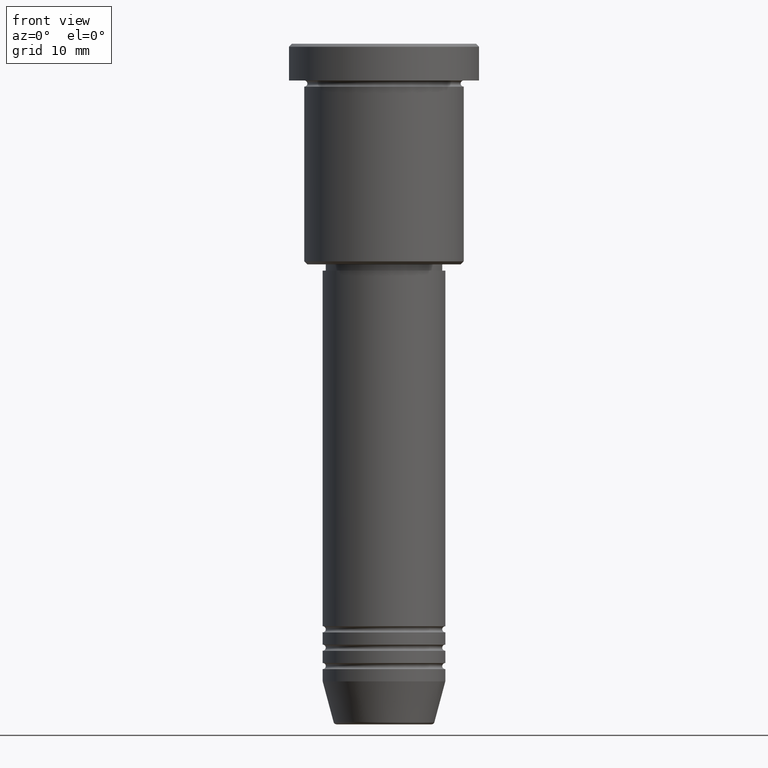
[diagram: clean part render]
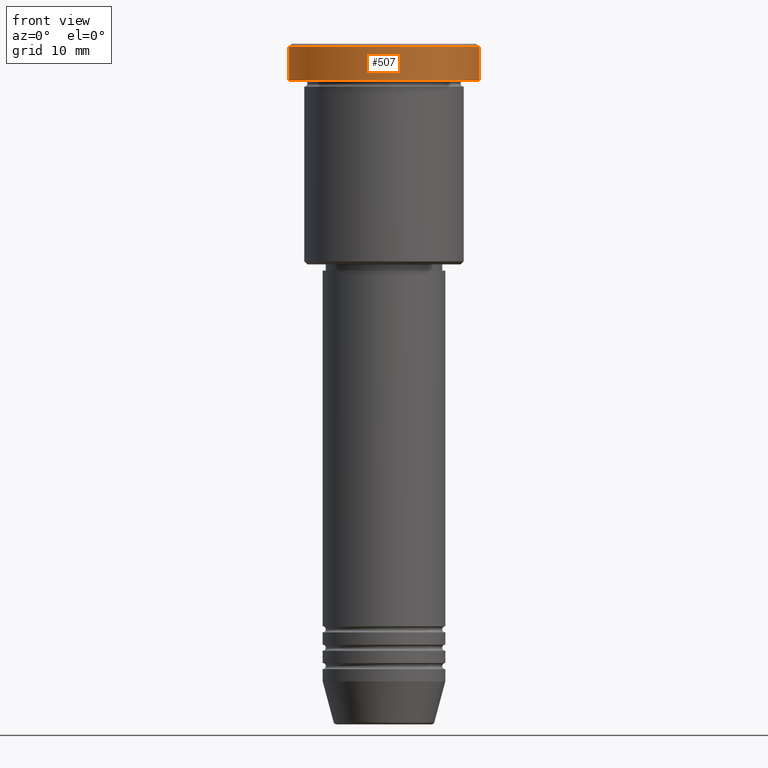
[diagram: same view with one face highlighted and labeled with its STEP entity id]
A machine part, front view. The second image highlights one B-rep face of the part: STEP entity #507.
In plain terms, the highlighted cylindrical surface (partial cylindrical patch) has radius 15.5 mm, axis along (-0, -0, 1).
Its self-contained STEP definition (entity closure, byte-faithful):
#23 = LINE ( 'NONE', #590, #964 ) ;
#101 = CARTESIAN_POINT ( 'NONE',  ( 0.000000000000000000, 0.000000000000000000, -0.5000000000000125455 ) ) ;
#122 = DIRECTION ( 'NONE',  ( -0.000000000000000000, -0.000000000000000000, 1.000000000000000000 ) ) ;
#125 = CARTESIAN_POINT ( 'NONE',  ( -15.50000000000000000, 1.898202538678397557E-15, -5.999999999999995559 ) ) ;
#129 = CARTESIAN_POINT ( 'NONE',  ( -15.50000000000000000, 1.898202538678397557E-15, 0.000000000000000000 ) ) ;
#177 = EDGE_CURVE ( 'NONE', #427, #953, #937, .T. ) ;
#192 = CYLINDRICAL_SURFACE ( 'NONE', #605, 15.50000000000000000 ) ;
#296 = AXIS2_PLACEMENT_3D ( 'NONE', #1000, #817, #923 ) ;
#364 = DIRECTION ( 'NONE',  ( 1.000000000000000000, 0.000000000000000000, 0.000000000000000000 ) ) ;
#371 = AXIS2_PLACEMENT_3D ( 'NONE', #101, #822, #364 ) ;
#424 = VECTOR ( 'NONE', #122, 1000.000000000000000 ) ;
#427 = VERTEX_POINT ( 'NONE', #125 ) ;
#457 = FACE_OUTER_BOUND ( 'NONE', #530, .T. ) ;
#507 = ADVANCED_FACE ( 'NONE', ( #457 ), #192, .T. ) ;
#530 = EDGE_LOOP ( 'NONE', ( #732, #631, #1134, #700 ) ) ;
#544 = EDGE_CURVE ( 'NONE', #427, #801, #796, .T. ) ;
#550 = CARTESIAN_POINT ( 'NONE',  ( 0.000000000000000000, 0.000000000000000000, 0.000000000000000000 ) ) ;
#590 = CARTESIAN_POINT ( 'NONE',  ( 15.50000000000000000, 0.000000000000000000, 0.000000000000000000 ) ) ;
#597 = EDGE_CURVE ( 'NONE', #862, #953, #782, .T. ) ;
#605 = AXIS2_PLACEMENT_3D ( 'NONE', #550, #827, #833 ) ;
#612 = CARTESIAN_POINT ( 'NONE',  ( 15.50000000000000000, 0.000000000000000000, -5.999999999999995559 ) ) ;
#631 = ORIENTED_EDGE ( 'NONE', *, *, #544, .T. ) ;
#669 = EDGE_CURVE ( 'NONE', #801, #862, #23, .T. ) ;
#700 = ORIENTED_EDGE ( 'NONE', *, *, #597, .T. ) ;
#728 = CARTESIAN_POINT ( 'NONE',  ( -15.50000000000000000, 1.898202538678397557E-15, -0.5000000000000125455 ) ) ;
#732 = ORIENTED_EDGE ( 'NONE', *, *, #177, .F. ) ;
#782 = CIRCLE ( 'NONE', #371, 15.50000000000000000 ) ;
#796 = CIRCLE ( 'NONE', #296, 15.50000000000000000 ) ;
#801 = VERTEX_POINT ( 'NONE', #612 ) ;
#817 = DIRECTION ( 'NONE',  ( -0.000000000000000000, -0.000000000000000000, 1.000000000000000000 ) ) ;
#822 = DIRECTION ( 'NONE',  ( 0.000000000000000000, 0.000000000000000000, -1.000000000000000000 ) ) ;
#827 = DIRECTION ( 'NONE',  ( -0.000000000000000000, -0.000000000000000000, 1.000000000000000000 ) ) ;
#833 = DIRECTION ( 'NONE',  ( 1.000000000000000000, 0.000000000000000000, 0.000000000000000000 ) ) ;
#852 = DIRECTION ( 'NONE',  ( -0.000000000000000000, -0.000000000000000000, 1.000000000000000000 ) ) ;
#862 = VERTEX_POINT ( 'NONE', #971 ) ;
#923 = DIRECTION ( 'NONE',  ( 1.000000000000000000, 0.000000000000000000, 0.000000000000000000 ) ) ;
#937 = LINE ( 'NONE', #129, #424 ) ;
#953 = VERTEX_POINT ( 'NONE', #728 ) ;
#964 = VECTOR ( 'NONE', #852, 1000.000000000000000 ) ;
#971 = CARTESIAN_POINT ( 'NONE',  ( 15.50000000000000000, 0.000000000000000000, -0.5000000000000125455 ) ) ;
#1000 = CARTESIAN_POINT ( 'NONE',  ( 0.000000000000000000, 0.000000000000000000, -5.999999999999995559 ) ) ;
#1134 = ORIENTED_EDGE ( 'NONE', *, *, #669, .T. ) ;